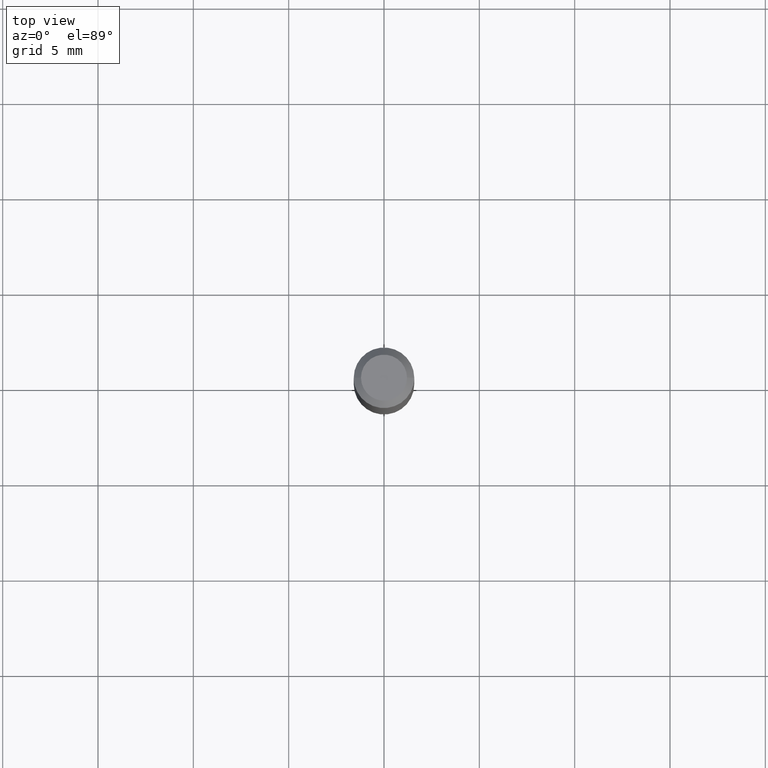
[diagram: clean part render]
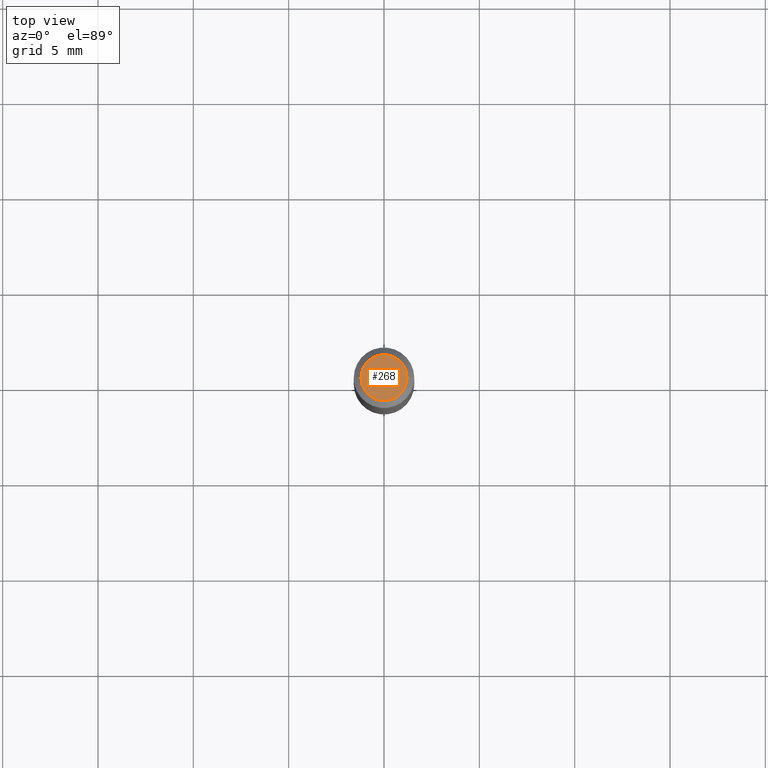
[diagram: same view with one face highlighted and labeled with its STEP entity id]
A machine part, top view. The second image highlights one B-rep face of the part: STEP entity #268.
In plain terms, the highlighted planar face has unit normal (0, -0, -1).
Its self-contained STEP definition (entity closure, byte-faithful):
#26 = CARTESIAN_POINT ( 'NONE',  ( 3.316907271900976096E-16, 0.04749999999999999362, 9.606345999275830148E-17 ) ) ;
#49 = EDGE_CURVE ( 'NONE', #212, #77, #264, .T. ) ;
#54 = CARTESIAN_POINT ( 'NONE',  ( -0.04749999999999999362, 3.578768372314219874E-16, 5.238176471756130292E-16 ) ) ;
#58 = DIRECTION ( 'NONE',  ( 1.000000000000000000, -6.982962677686267499E-15, 4.852736867747366768E-29 ) ) ;
#67 = CIRCLE ( 'NONE', #108, 0.04749999999999999362 ) ;
#74 = EDGE_CURVE ( 'NONE', #77, #212, #67, .T. ) ;
#77 = VERTEX_POINT ( 'NONE', #54 ) ;
#97 = FACE_OUTER_BOUND ( 'NONE', #438, .T. ) ;
#108 = AXIS2_PLACEMENT_3D ( 'NONE', #430, #457, #58 ) ;
#109 = DIRECTION ( 'NONE',  ( 2.438088387897960049E-29, -3.491481338843145188E-15, -1.000000000000000000 ) ) ;
#189 = DIRECTION ( 'NONE',  ( -2.445468806185136597E-29, 3.491481338843145583E-15, 1.000000000000000000 ) ) ;
#209 = ORIENTED_EDGE ( 'NONE', *, *, #74, .T. ) ;
#212 = VERTEX_POINT ( 'NONE', #450 ) ;
#216 = AXIS2_PLACEMENT_3D ( 'NONE', #368, #189, #378 ) ;
#264 = CIRCLE ( 'NONE', #216, 0.04749999999999999362 ) ;
#268 = ADVANCED_FACE ( 'NONE', ( #97 ), #349, .F. ) ;
#286 = DIRECTION ( 'NONE',  ( -1.000000000000000000, 6.982962677686265922E-15, -4.876176775795935793E-29 ) ) ;
#337 = AXIS2_PLACEMENT_3D ( 'NONE', #26, #109, #286 ) ;
#349 = PLANE ( 'NONE',  #337 ) ;
#362 = ORIENTED_EDGE ( 'NONE', *, *, #49, .T. ) ;
#368 = CARTESIAN_POINT ( 'NONE',  ( -1.280979716297259255E-44, 1.828899540070384152E-30, 5.238176471756153958E-16 ) ) ;
#378 = DIRECTION ( 'NONE',  ( 1.000000000000000000, -6.982962677686267499E-15, 4.852736867747366768E-29 ) ) ;
#430 = CARTESIAN_POINT ( 'NONE',  ( -1.280979716297259255E-44, 1.828899540070384152E-30, 5.238176471756153958E-16 ) ) ;
#438 = EDGE_LOOP ( 'NONE', ( #209, #362 ) ) ;
#450 = CARTESIAN_POINT ( 'NONE',  ( 0.04749999999999999362, -4.035134999187569255E-16, 5.238176471756179596E-16 ) ) ;
#457 = DIRECTION ( 'NONE',  ( -2.445468806185136597E-29, 3.491481338843145583E-15, 1.000000000000000000 ) ) ;